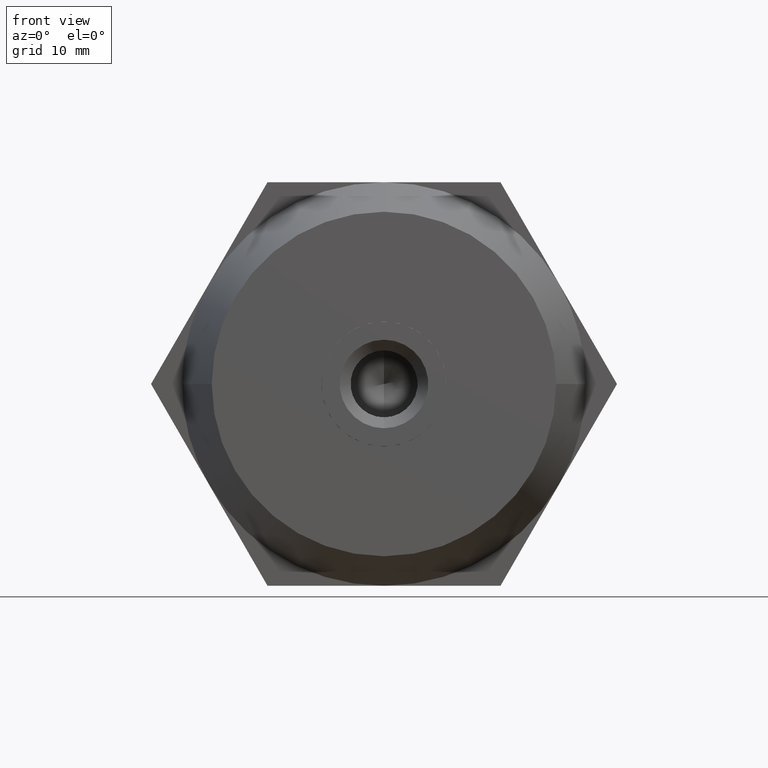
[diagram: clean part render]
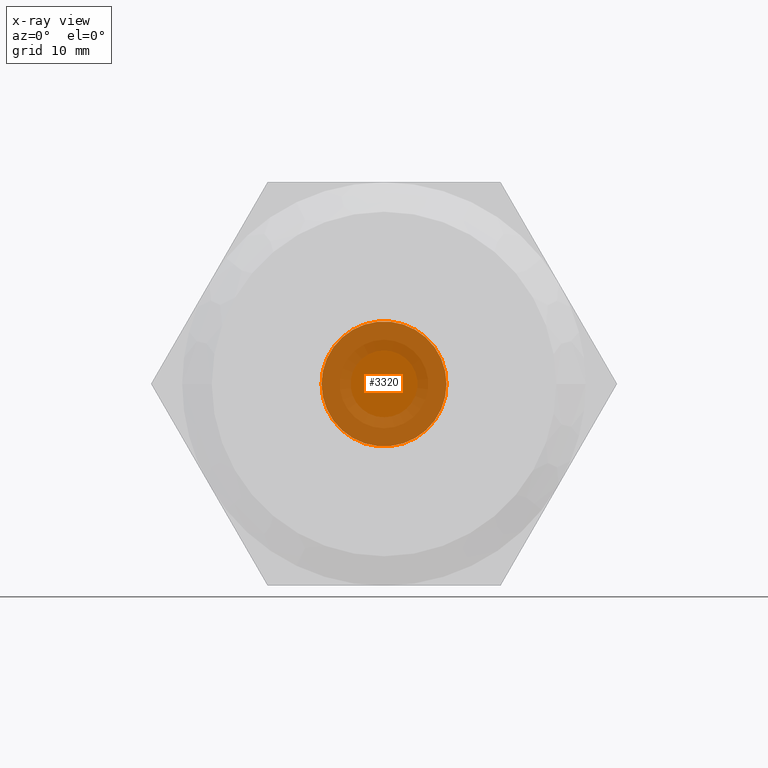
[diagram: x-ray — body ghosted, one internal face saturated and labeled with its STEP entity id]
A machine part, front view, then the same camera in x-ray: the body is ghosted and one INTERNAL B-rep face — a face not visible from any outside direction — is saturated and labeled: STEP entity #3320.
In plain terms, the highlighted planar face has unit normal (0, -1, 0).
Its self-contained STEP definition (entity closure, byte-faithful):
#15 = FACE_OUTER_BOUND ( 'NONE', #2738, .T. ) ;
#128 = DIRECTION ( 'NONE',  ( -0.0000000000000000000, 1.000000000000000000, -0.0000000000000000000 ) ) ;
#151 = EDGE_CURVE ( 'NONE', #686, #973, #3008, .T. ) ;
#186 = CARTESIAN_POINT ( 'NONE',  ( 3.469446951953615000E-015, -10.01000000000000000, 0.0000000000000000000 ) ) ;
#205 = DIRECTION ( 'NONE',  ( 0.0000000000000000000, 0.0000000000000000000, -1.000000000000000000 ) ) ;
#212 = DIRECTION ( 'NONE',  ( -0.0000000000000000000, 1.000000000000000000, -0.0000000000000000000 ) ) ;
#216 = CARTESIAN_POINT ( 'NONE',  ( 3.174999999999955000, -10.00999999999924000, -5.499261314031209700 ) ) ;
#288 = DIRECTION ( 'NONE',  ( 0.0000000000000000000, 0.0000000000000000000, -1.000000000000000000 ) ) ;
#339 = AXIS2_PLACEMENT_3D ( 'NONE', #2549, #212, #790 ) ;
#477 = ORIENTED_EDGE ( 'NONE', *, *, #846, .F. ) ;
#652 = ORIENTED_EDGE ( 'NONE', *, *, #1095, .F. ) ;
#686 = VERTEX_POINT ( 'NONE', #1519 ) ;
#689 = ORIENTED_EDGE ( 'NONE', *, *, #2892, .F. ) ;
#702 = CARTESIAN_POINT ( 'NONE',  ( -3.174999999999999800, -10.01000000000000000, -5.499261314031190100 ) ) ;
#744 = DIRECTION ( 'NONE',  ( 0.0000000000000000000, 0.0000000000000000000, -1.000000000000000000 ) ) ;
#790 = DIRECTION ( 'NONE',  ( 1.776356839400250500E-015, 0.0000000000000000000, -1.000000000000000000 ) ) ;
#846 = EDGE_CURVE ( 'NONE', #1639, #686, #2113, .T. ) ;
#948 = DIRECTION ( 'NONE',  ( 0.0000000000000000000, 0.0000000000000000000, -1.000000000000000000 ) ) ;
#973 = VERTEX_POINT ( 'NONE', #216 ) ;
#1025 = AXIS2_PLACEMENT_3D ( 'NONE', #2130, #128, #1856 ) ;
#1043 = EDGE_CURVE ( 'NONE', #973, #2770, #3372, .T. ) ;
#1095 = EDGE_CURVE ( 'NONE', #3769, #3448, #1986, .T. ) ;
#1187 = ORIENTED_EDGE ( 'NONE', *, *, #1043, .F. ) ;
#1406 = AXIS2_PLACEMENT_3D ( 'NONE', #1686, #3743, #288 ) ;
#1519 = CARTESIAN_POINT ( 'NONE',  ( 6.349999999999999600, -10.01000000000000000, 0.0000000000000000000 ) ) ;
#1569 = CIRCLE ( 'NONE', #3492, 6.349999999999999600 ) ;
#1593 = CARTESIAN_POINT ( 'NONE',  ( 0.0000000000000000000, -10.01000000000000000, 0.0000000000000000000 ) ) ;
#1639 = VERTEX_POINT ( 'NONE', #2238 ) ;
#1686 = CARTESIAN_POINT ( 'NONE',  ( 3.469446951953615000E-015, -10.01000000000000000, 0.0000000000000000000 ) ) ;
#1803 = CARTESIAN_POINT ( 'NONE',  ( 3.469446951953615000E-015, -10.01000000000000000, 0.0000000000000000000 ) ) ;
#1856 = DIRECTION ( 'NONE',  ( 0.0000000000000000000, 0.0000000000000000000, -1.000000000000000000 ) ) ;
#1876 = EDGE_CURVE ( 'NONE', #2770, #3769, #1569, .T. ) ;
#1911 = DIRECTION ( 'NONE',  ( -0.0000000000000000000, 1.000000000000000000, -0.0000000000000000000 ) ) ;
#1931 = DIRECTION ( 'NONE',  ( -0.0000000000000000000, 1.000000000000000000, -0.0000000000000000000 ) ) ;
#1957 = ORIENTED_EDGE ( 'NONE', *, *, #151, .F. ) ;
#1986 = CIRCLE ( 'NONE', #2202, 6.349999999999999600 ) ;
#2021 = CIRCLE ( 'NONE', #339, 6.349999999999999600 ) ;
#2113 = CIRCLE ( 'NONE', #1025, 6.349999999999999600 ) ;
#2130 = CARTESIAN_POINT ( 'NONE',  ( 3.469446951953615000E-015, -10.01000000000000000, 0.0000000000000000000 ) ) ;
#2202 = AXIS2_PLACEMENT_3D ( 'NONE', #3693, #1931, #205 ) ;
#2210 = DIRECTION ( 'NONE',  ( -0.0000000000000000000, 1.000000000000000000, -0.0000000000000000000 ) ) ;
#2226 = DIRECTION ( 'NONE',  ( 0.0000000000000000000, 0.0000000000000000000, -1.000000000000000000 ) ) ;
#2238 = CARTESIAN_POINT ( 'NONE',  ( 3.175000000000049600, -10.00999999999924000, 5.499261314031159900 ) ) ;
#2549 = CARTESIAN_POINT ( 'NONE',  ( 3.469446951953615000E-015, -10.01000000000000000, 0.0000000000000000000 ) ) ;
#2738 = EDGE_LOOP ( 'NONE', ( #1187, #1957, #477, #689, #652, #3335 ) ) ;
#2770 = VERTEX_POINT ( 'NONE', #702 ) ;
#2803 = AXIS2_PLACEMENT_3D ( 'NONE', #186, #2210, #2226 ) ;
#2856 = CARTESIAN_POINT ( 'NONE',  ( -3.174999999999950100, -10.00999999999924000, 5.499261314031209700 ) ) ;
#2892 = EDGE_CURVE ( 'NONE', #3448, #1639, #2021, .T. ) ;
#2949 = AXIS2_PLACEMENT_3D ( 'NONE', #1593, #3331, #744 ) ;
#3008 = CIRCLE ( 'NONE', #1406, 6.349999999999999600 ) ;
#3053 = CARTESIAN_POINT ( 'NONE',  ( -6.349999999999999600, -10.01000000000000000, 0.0000000000000000000 ) ) ;
#3320 = ADVANCED_FACE ( 'NONE', ( #15 ), #3374, .T. ) ;
#3331 = DIRECTION ( 'NONE',  ( 0.0000000000000000000, -1.000000000000000000, 0.0000000000000000000 ) ) ;
#3335 = ORIENTED_EDGE ( 'NONE', *, *, #1876, .F. ) ;
#3372 = CIRCLE ( 'NONE', #2803, 6.349999999999999600 ) ;
#3374 = PLANE ( 'NONE',  #2949 ) ;
#3448 = VERTEX_POINT ( 'NONE', #2856 ) ;
#3492 = AXIS2_PLACEMENT_3D ( 'NONE', #1803, #1911, #948 ) ;
#3693 = CARTESIAN_POINT ( 'NONE',  ( 3.469446951953615000E-015, -10.01000000000000000, 0.0000000000000000000 ) ) ;
#3743 = DIRECTION ( 'NONE',  ( -0.0000000000000000000, 1.000000000000000000, -0.0000000000000000000 ) ) ;
#3769 = VERTEX_POINT ( 'NONE', #3053 ) ;